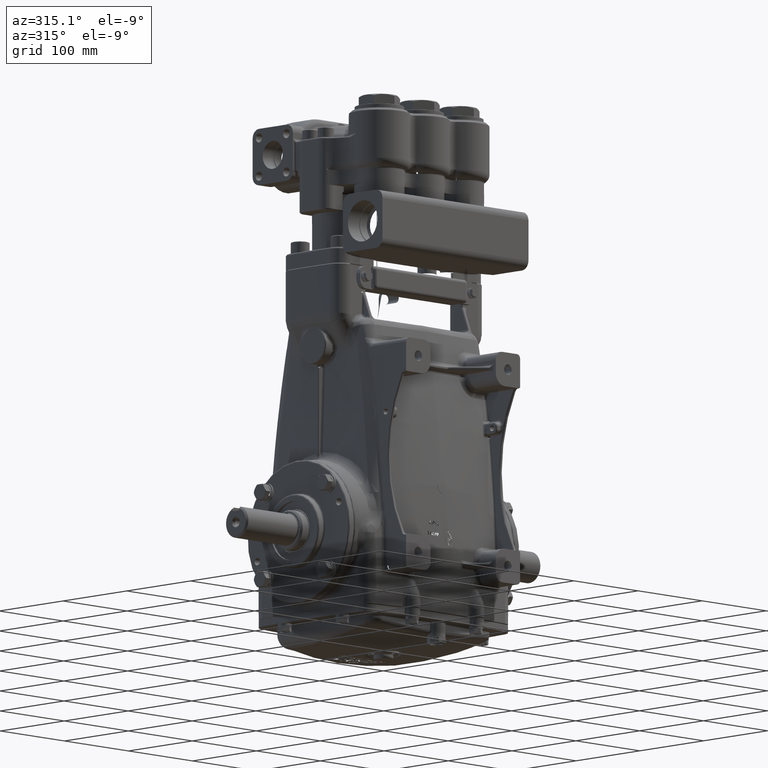
[diagram: clean part render]
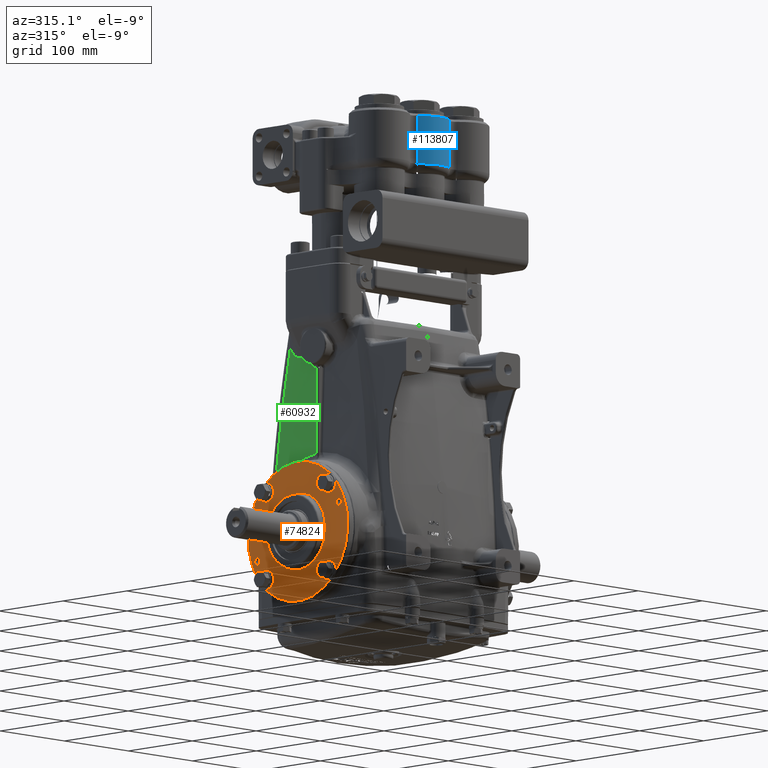
[diagram: same view with three faces highlighted in distinct colors, each labeled with its STEP entity id]
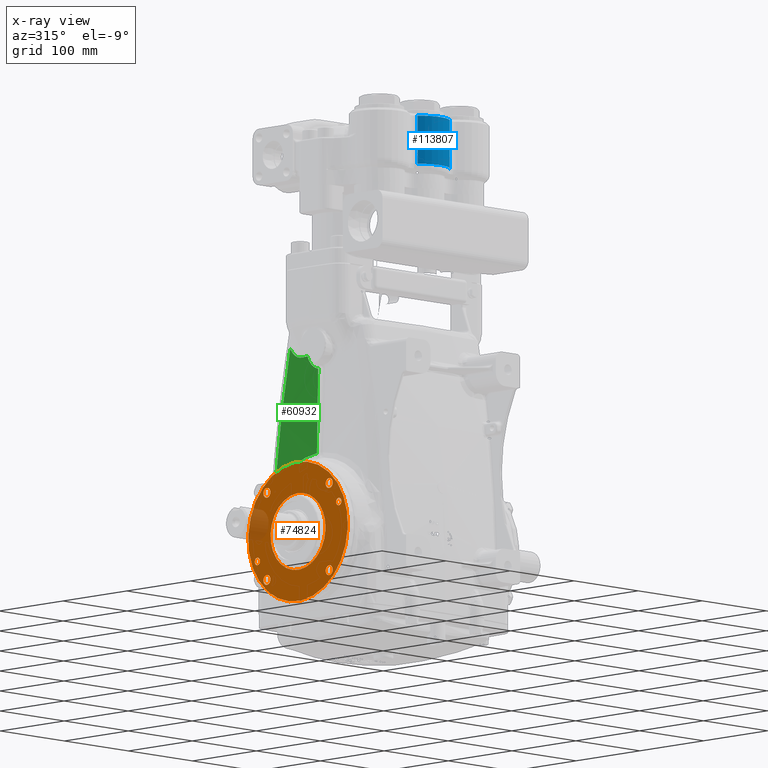
[diagram: x-ray of the same camera — body ghosted, the three highlighted faces saturated]
A machine part, auxiliary view with three faces highlighted in distinct colors.
The next image is the same camera in x-ray (body ghosted, the three faces saturated) — at least one of them is partly hidden behind the body in this view.
Their STEP definitions:

[orange] entity #74824 — the highlighted planar face has unit normal (-1, -0, 0).
#732 = ORIENTED_EDGE ( 'NONE', *, *, #22535, .T. ) ;
#951 = AXIS2_PLACEMENT_3D ( 'NONE', #77580, #118237, #26880 ) ;
#1003 = VERTEX_POINT ( 'NONE', #127578 ) ;
#3707 = CARTESIAN_POINT ( 'NONE',  ( -5.246062992125984259, -4.156730640558441200E-17, 2.958535915340194190E-16 ) ) ;
#4378 = FACE_OUTER_BOUND ( 'NONE', #118979, .T. ) ;
#6145 = CIRCLE ( 'NONE', #80750, 0.2165354330708663400 ) ;
#6868 = AXIS2_PLACEMENT_3D ( 'NONE', #33521, #74221, #114879 ) ;
#7209 = CARTESIAN_POINT ( 'NONE',  ( -5.246062992125986035, 1.767766952966371985, 1.767766952966366878 ) ) ;
#9135 = CARTESIAN_POINT ( 'NONE',  ( -5.246062992125986035, 2.073994299149522824, 2.073994299149517051 ) ) ;
#9946 = DIRECTION ( 'NONE',  ( -1.000000000000000000, -1.279769191153750031E-16, 9.737501798821864473E-31 ) ) ;
#10810 = CARTESIAN_POINT ( 'NONE',  ( -5.246062992125984259, -1.767766952966366878, 2.073994299149521936 ) ) ;
#11495 = ORIENTED_EDGE ( 'NONE', *, *, #78857, .F. ) ;
#12689 = VERTEX_POINT ( 'NONE', #26051 ) ;
#13182 = DIRECTION ( 'NONE',  ( -1.000000000000000000, -1.279769191153750031E-16, 9.737501798821864473E-31 ) ) ;
#13469 = CARTESIAN_POINT ( 'NONE',  ( -5.246062992125986035, 1.920880626057941409, -1.920880626057947405 ) ) ;
#13517 = CARTESIAN_POINT ( 'NONE',  ( -5.246062992125986035, 1.767766952966365768, -2.073994299149522824 ) ) ;
#13592 = VERTEX_POINT ( 'NONE', #89740 ) ;
#15008 = DIRECTION ( 'NONE',  ( -1.000000000000000000, -1.279769191153750031E-16, 9.737501798821864473E-31 ) ) ;
#15083 = DIRECTION ( 'NONE',  ( -1.000000000000000000, -1.279769191153749784E-16, 1.010728034814421376E-30 ) ) ;
#15602 = EDGE_CURVE ( 'NONE', #13592, #114374, #112849, .T. ) ;
#17557 = CARTESIAN_POINT ( 'NONE',  ( -5.246062992125986035, 1.920880626057947405, 1.920880626057941853 ) ) ;
#18728 = CARTESIAN_POINT ( 'NONE',  ( -5.246062992125984259, -1.920880626057942520, 1.920880626057946960 ) ) ;
#19965 = AXIS2_PLACEMENT_3D ( 'NONE', #18728, #59423, #100132 ) ;
#20178 = ORIENTED_EDGE ( 'NONE', *, *, #55443, .F. ) ;
#20803 = ORIENTED_EDGE ( 'NONE', *, *, #27095, .F. ) ;
#22086 = DIRECTION ( 'NONE',  ( -1.000000000000000000, -3.748357177353093439E-17, 9.049334734184479589E-17 ) ) ;
#22225 = CIRCLE ( 'NONE', #96736, 0.2165354330708661734 ) ;
#22501 = VERTEX_POINT ( 'NONE', #128935 ) ;
#22535 = EDGE_CURVE ( 'NONE', #91305, #99095, #26161, .T. ) ;
#23315 = CIRCLE ( 'NONE', #97879, 0.2165354330708663400 ) ;
#23331 = DIRECTION ( 'NONE',  ( -1.000000000000000000, -1.279769191153750031E-16, 9.737501798821864473E-31 ) ) ;
#24328 = VERTEX_POINT ( 'NONE', #13517 ) ;
#25081 = FACE_BOUND ( 'NONE', #112045, .T. ) ;
#25197 = CIRCLE ( 'NONE', #99793, 3.070866141732283339 ) ;
#25440 = EDGE_CURVE ( 'NONE', #99095, #91305, #25197, .T. ) ;
#26051 = CARTESIAN_POINT ( 'NONE',  ( -5.246062992125984259, -1.197070535079590270, -1.197070535079586717 ) ) ;
#26161 = CIRCLE ( 'NONE', #100751, 3.070866141732283339 ) ;
#26688 = CARTESIAN_POINT ( 'NONE',  ( -5.246062992125984259, -2.509751485955854733, 1.039573103668955278 ) ) ;
#26880 = DIRECTION ( 'NONE',  ( 0.0000000000000000000, -0.7071067811865485719, -0.7071067811865465735 ) ) ;
#26892 = VERTEX_POINT ( 'NONE', #129601 ) ;
#27095 = EDGE_CURVE ( 'NONE', #24328, #1003, #23315, .T. ) ;
#27548 = CARTESIAN_POINT ( 'NONE',  ( -5.246062992125984259, -4.156730640558441200E-17, 2.958535915340194190E-16 ) ) ;
#27600 = EDGE_LOOP ( 'NONE', ( #128414, #11495 ) ) ;
#33521 = CARTESIAN_POINT ( 'NONE',  ( -5.246062992125984259, -1.920880626057946960, -1.920880626057941409 ) ) ;
#33696 = ORIENTED_EDGE ( 'NONE', *, *, #54325, .F. ) ;
#35103 = FACE_BOUND ( 'NONE', #46585, .T. ) ;
#35650 = CARTESIAN_POINT ( 'NONE',  ( -5.246062992125984259, -2.509751485955854733, 1.039573103668955278 ) ) ;
#36088 = DIRECTION ( 'NONE',  ( 0.0000000000000000000, -0.7071067811865486830, -0.7071067811865461294 ) ) ;
#36319 = EDGE_CURVE ( 'NONE', #114182, #37950, #77471, .T. ) ;
#37391 = ORIENTED_EDGE ( 'NONE', *, *, #89387, .F. ) ;
#37856 = AXIS2_PLACEMENT_3D ( 'NONE', #17557, #58244, #98946 ) ;
#37950 = VERTEX_POINT ( 'NONE', #94280 ) ;
#38774 = CIRCLE ( 'NONE', #113337, 1.692913385826771977 ) ;
#39357 = DIRECTION ( 'NONE',  ( -1.000000000000000000, -3.748357177353093439E-17, 9.049334734184479589E-17 ) ) ;
#42129 = ORIENTED_EDGE ( 'NONE', *, *, #25440, .T. ) ;
#42144 = VERTEX_POINT ( 'NONE', #101385 ) ;
#43349 = ORIENTED_EDGE ( 'NONE', *, *, #94141, .F. ) ;
#44255 = ORIENTED_EDGE ( 'NONE', *, *, #51046, .F. ) ;
#44425 = DIRECTION ( 'NONE',  ( 1.000000000000000000, 1.279769191153750031E-16, -9.737501798821864473E-31 ) ) ;
#45109 = FACE_BOUND ( 'NONE', #90859, .T. ) ;
#46585 = EDGE_LOOP ( 'NONE', ( #20803, #44255 ) ) ;
#50650 = DIRECTION ( 'NONE',  ( 0.0000000000000000000, -0.7071067811865481278, -0.7071067811865469066 ) ) ;
#51046 = EDGE_CURVE ( 'NONE', #1003, #24328, #6145, .T. ) ;
#53867 = DIRECTION ( 'NONE',  ( 0.0000000000000000000, -0.7071067811865481278, -0.7071067811865469066 ) ) ;
#54154 = DIRECTION ( 'NONE',  ( -1.000000000000000000, -1.279769191153750031E-16, 9.737501798821864473E-31 ) ) ;
#54325 = EDGE_CURVE ( 'NONE', #54467, #26892, #119172, .T. ) ;
#54467 = VERTEX_POINT ( 'NONE', #99368 ) ;
#55302 = AXIS2_PLACEMENT_3D ( 'NONE', #114700, #23331, #64021 ) ;
#55443 = EDGE_CURVE ( 'NONE', #22501, #103413, #121488, .T. ) ;
#55702 = DIRECTION ( 'NONE',  ( 0.0000000000000000000, -0.7071067811865484609, -0.7071067811865465735 ) ) ;
#55774 = DIRECTION ( 'NONE',  ( 9.049334734184335376E-17, -0.7071067811865484609, -0.7071067811865465735 ) ) ;
#56364 = CIRCLE ( 'NONE', #130933, 0.1648818897637790437 ) ;
#56662 = ORIENTED_EDGE ( 'NONE', *, *, #95333, .F. ) ;
#57846 = CARTESIAN_POINT ( 'NONE',  ( -5.246062992125984259, 2.171430272935069627, 2.171430272935065187 ) ) ;
#58244 = DIRECTION ( 'NONE',  ( -1.000000000000000000, -1.279769191153750031E-16, 9.737501798821864473E-31 ) ) ;
#58454 = CIRCLE ( 'NONE', #951, 1.692913385826771977 ) ;
#59423 = DIRECTION ( 'NONE',  ( -1.000000000000000000, -1.279769191153750031E-16, 9.737501798821864473E-31 ) ) ;
#60838 = CARTESIAN_POINT ( 'NONE',  ( -5.246062992125984259, -2.171430272935070072, -2.171430272935063854 ) ) ;
#61718 = AXIS2_PLACEMENT_3D ( 'NONE', #26688, #67369, #108057 ) ;
#62112 = EDGE_CURVE ( 'NONE', #42144, #12689, #58454, .T. ) ;
#62499 = EDGE_LOOP ( 'NONE', ( #99022, #78035 ) ) ;
#62771 = DIRECTION ( 'NONE',  ( 0.0000000000000000000, -0.7071067811865463515, 0.7071067811865487940 ) ) ;
#63977 = AXIS2_PLACEMENT_3D ( 'NONE', #130743, #39357, #80048 ) ;
#64021 = DIRECTION ( 'NONE',  ( 0.0000000000000000000, -0.7071067811865486830, -0.7071067811865461294 ) ) ;
#64403 = CIRCLE ( 'NONE', #6868, 0.2165354330708661734 ) ;
#65763 = PLANE ( 'NONE',  #83401 ) ;
#67369 = DIRECTION ( 'NONE',  ( -1.000000000000000000, -3.748357177353093439E-17, 9.049334734184479589E-17 ) ) ;
#68245 = DIRECTION ( 'NONE',  ( -1.000000000000000000, -1.279769191153750031E-16, 9.737501798821864473E-31 ) ) ;
#68491 = VERTEX_POINT ( 'NONE', #9135 ) ;
#69396 = EDGE_CURVE ( 'NONE', #117453, #68491, #95362, .T. ) ;
#71879 = CARTESIAN_POINT ( 'NONE',  ( -5.246062992125984259, -1.767766952966371319, -1.767766952966366434 ) ) ;
#74221 = DIRECTION ( 'NONE',  ( -1.000000000000000000, -1.279769191153750031E-16, 9.737501798821864473E-31 ) ) ;
#74824 = ADVANCED_FACE ( 'NONE', ( #4378, #45109, #85799, #126470, #35103, #75804, #116462, #25081 ), #65763, .T. ) ;
#75709 = AXIS2_PLACEMENT_3D ( 'NONE', #101363, #9946, #50650 ) ;
#75730 = CARTESIAN_POINT ( 'NONE',  ( -5.246062992125984259, -4.156730640558441200E-17, 2.958535915340194190E-16 ) ) ;
#75804 = FACE_BOUND ( 'NONE', #27600, .T. ) ;
#76351 = DIRECTION ( 'NONE',  ( -1.000000000000000000, -3.748357177353093439E-17, 9.049334734184479589E-17 ) ) ;
#77471 = CIRCLE ( 'NONE', #19965, 0.2165354330708663400 ) ;
#77580 = CARTESIAN_POINT ( 'NONE',  ( -5.246062992125984259, -4.156730640558441200E-17, 2.958535915340194190E-16 ) ) ;
#78035 = ORIENTED_EDGE ( 'NONE', *, *, #93213, .F. ) ;
#78857 = EDGE_CURVE ( 'NONE', #114374, #13592, #64403, .T. ) ;
#80048 = DIRECTION ( 'NONE',  ( 0.0000000000000000000, -0.7071067811865463515, 0.7071067811865487940 ) ) ;
#80750 = AXIS2_PLACEMENT_3D ( 'NONE', #104587, #13182, #53867 ) ;
#81644 = CIRCLE ( 'NONE', #98660, 0.1648818897637792658 ) ;
#83401 = AXIS2_PLACEMENT_3D ( 'NONE', #106462, #15083, #55774 ) ;
#85117 = DIRECTION ( 'NONE',  ( 0.0000000000000000000, -0.7071067811865485719, -0.7071067811865465735 ) ) ;
#85799 = FACE_BOUND ( 'NONE', #86123, .T. ) ;
#86123 = EDGE_LOOP ( 'NONE', ( #33696, #37391 ) ) ;
#86773 = CARTESIAN_POINT ( 'NONE',  ( -5.246062992125986035, 1.920880626057947405, 1.920880626057941853 ) ) ;
#87592 = EDGE_CURVE ( 'NONE', #12689, #42144, #38774, .T. ) ;
#88631 = EDGE_LOOP ( 'NONE', ( #20178, #43349 ) ) ;
#89387 = EDGE_CURVE ( 'NONE', #26892, #54467, #81644, .T. ) ;
#89740 = CARTESIAN_POINT ( 'NONE',  ( -5.246062992125984259, -2.073994299149522380, -2.073994299149516607 ) ) ;
#90859 = EDGE_LOOP ( 'NONE', ( #95355, #117509 ) ) ;
#91305 = VERTEX_POINT ( 'NONE', #57846 ) ;
#93213 = EDGE_CURVE ( 'NONE', #68491, #117453, #22225, .T. ) ;
#94141 = EDGE_CURVE ( 'NONE', #103413, #22501, #56364, .T. ) ;
#94280 = CARTESIAN_POINT ( 'NONE',  ( -5.246062992125984259, -2.073994299149517939, 1.767766952966371541 ) ) ;
#94833 = DIRECTION ( 'NONE',  ( 0.0000000000000000000, -0.7071067811865481278, -0.7071067811865469066 ) ) ;
#95333 = EDGE_CURVE ( 'NONE', #37950, #114182, #116146, .T. ) ;
#95355 = ORIENTED_EDGE ( 'NONE', *, *, #87592, .T. ) ;
#95362 = CIRCLE ( 'NONE', #37856, 0.2165354330708661734 ) ;
#96736 = AXIS2_PLACEMENT_3D ( 'NONE', #86773, #127449, #36088 ) ;
#97879 = AXIS2_PLACEMENT_3D ( 'NONE', #13469, #54154, #94833 ) ;
#98660 = AXIS2_PLACEMENT_3D ( 'NONE', #35650, #76351, #117015 ) ;
#98946 = DIRECTION ( 'NONE',  ( 0.0000000000000000000, -0.7071067811865486830, -0.7071067811865461294 ) ) ;
#99022 = ORIENTED_EDGE ( 'NONE', *, *, #69396, .F. ) ;
#99095 = VERTEX_POINT ( 'NONE', #60838 ) ;
#99368 = CARTESIAN_POINT ( 'NONE',  ( -5.246062992125984259, -2.626340588302675805, 1.156162206015776350 ) ) ;
#99793 = AXIS2_PLACEMENT_3D ( 'NONE', #75730, #15008, #55702 ) ;
#100132 = DIRECTION ( 'NONE',  ( 0.0000000000000000000, -0.7071067811865481278, -0.7071067811865469066 ) ) ;
#100751 = AXIS2_PLACEMENT_3D ( 'NONE', #27548, #68245, #108921 ) ;
#101363 = CARTESIAN_POINT ( 'NONE',  ( -5.246062992125984259, -1.920880626057942520, 1.920880626057946960 ) ) ;
#101385 = CARTESIAN_POINT ( 'NONE',  ( -5.246062992125984259, 1.197070535079590048, 1.197070535079587383 ) ) ;
#103413 = VERTEX_POINT ( 'NONE', #106996 ) ;
#104587 = CARTESIAN_POINT ( 'NONE',  ( -5.246062992125986035, 1.920880626057941409, -1.920880626057947405 ) ) ;
#106462 = CARTESIAN_POINT ( 'NONE',  ( -5.246062992125984259, 1.141392835773562764, 1.141392835773559877 ) ) ;
#106996 = CARTESIAN_POINT ( 'NONE',  ( -5.246062992125986035, 2.626340588302674917, -1.156162206015776128 ) ) ;
#108057 = DIRECTION ( 'NONE',  ( 0.0000000000000000000, -0.7071067811865471286, 0.7071067811865477948 ) ) ;
#108921 = DIRECTION ( 'NONE',  ( 0.0000000000000000000, -0.7071067811865484609, -0.7071067811865465735 ) ) ;
#112045 = EDGE_LOOP ( 'NONE', ( #56662, #120625 ) ) ;
#112849 = CIRCLE ( 'NONE', #55302, 0.2165354330708661734 ) ;
#113337 = AXIS2_PLACEMENT_3D ( 'NONE', #3707, #44425, #85117 ) ;
#113459 = CARTESIAN_POINT ( 'NONE',  ( -5.246062992125986035, 2.509751485955853845, -1.039573103668955056 ) ) ;
#114182 = VERTEX_POINT ( 'NONE', #10810 ) ;
#114374 = VERTEX_POINT ( 'NONE', #71879 ) ;
#114700 = CARTESIAN_POINT ( 'NONE',  ( -5.246062992125984259, -1.920880626057946960, -1.920880626057941409 ) ) ;
#114879 = DIRECTION ( 'NONE',  ( 0.0000000000000000000, -0.7071067811865486830, -0.7071067811865461294 ) ) ;
#116146 = CIRCLE ( 'NONE', #75709, 0.2165354330708663400 ) ;
#116462 = FACE_BOUND ( 'NONE', #62499, .T. ) ;
#117015 = DIRECTION ( 'NONE',  ( 0.0000000000000000000, -0.7071067811865471286, 0.7071067811865477948 ) ) ;
#117453 = VERTEX_POINT ( 'NONE', #7209 ) ;
#117509 = ORIENTED_EDGE ( 'NONE', *, *, #62112, .T. ) ;
#118237 = DIRECTION ( 'NONE',  ( 1.000000000000000000, 1.279769191153750031E-16, -9.737501798821864473E-31 ) ) ;
#118979 = EDGE_LOOP ( 'NONE', ( #42129, #732 ) ) ;
#119172 = CIRCLE ( 'NONE', #61718, 0.1648818897637792658 ) ;
#120625 = ORIENTED_EDGE ( 'NONE', *, *, #36319, .F. ) ;
#121488 = CIRCLE ( 'NONE', #63977, 0.1648818897637790437 ) ;
#126470 = FACE_BOUND ( 'NONE', #88631, .T. ) ;
#127449 = DIRECTION ( 'NONE',  ( -1.000000000000000000, -1.279769191153750031E-16, 9.737501798821864473E-31 ) ) ;
#127578 = CARTESIAN_POINT ( 'NONE',  ( -5.246062992125986035, 2.073994299149517051, -1.767766952966372207 ) ) ;
#128414 = ORIENTED_EDGE ( 'NONE', *, *, #15602, .F. ) ;
#128935 = CARTESIAN_POINT ( 'NONE',  ( -5.246062992125986035, 2.393162383609033217, -0.9229840013221337625 ) ) ;
#129601 = CARTESIAN_POINT ( 'NONE',  ( -5.246062992125984259, -2.393162383609034105, 0.9229840013221340955 ) ) ;
#130743 = CARTESIAN_POINT ( 'NONE',  ( -5.246062992125986035, 2.509751485955853845, -1.039573103668955056 ) ) ;
#130933 = AXIS2_PLACEMENT_3D ( 'NONE', #113459, #22086, #62771 ) ;

[blue] entity #113807 — the highlighted cylindrical surface (edge-blend (fillet) strip) has radius 34 mm, axis along (-0, -0, 1).
#106 = EDGE_CURVE ( 'NONE', #85968, #28045, #126528, .T. ) ;
#1385 = DIRECTION ( 'NONE',  ( -0.0000000000000000000, -0.0000000000000000000, 1.000000000000000000 ) ) ;
#3161 = VECTOR ( 'NONE', #17154, 39.37007874015748143 ) ;
#8573 = EDGE_CURVE ( 'NONE', #91623, #29116, #69541, .T. ) ;
#13174 = AXIS2_PLACEMENT_3D ( 'NONE', #22904, #63578, #104281 ) ;
#17154 = DIRECTION ( 'NONE',  ( 0.0000000000000000000, 0.0000000000000000000, -1.000000000000000000 ) ) ;
#19270 = LINE ( 'NONE', #59967, #83981 ) ;
#22904 = CARTESIAN_POINT ( 'NONE',  ( -5.463695987328526437E-16, -2.204724409448818534, 19.90831493177342537 ) ) ;
#27483 = DIRECTION ( 'NONE',  ( -1.000000000000000000, 0.0000000000000000000, 0.0000000000000000000 ) ) ;
#28045 = VERTEX_POINT ( 'NONE', #44237 ) ;
#29085 = AXIS2_PLACEMENT_3D ( 'NONE', #62121, #1385, #42103 ) ;
#29116 = VERTEX_POINT ( 'NONE', #116767 ) ;
#38495 = EDGE_CURVE ( 'NONE', #28045, #91623, #67839, .T. ) ;
#42103 = DIRECTION ( 'NONE',  ( -1.000000000000000000, 0.0000000000000000000, 0.0000000000000000000 ) ) ;
#44237 = CARTESIAN_POINT ( 'NONE',  ( -0.9880014998125238312, -3.107861508662094874, 18.46456692913385922 ) ) ;
#48582 = EDGE_LOOP ( 'NONE', ( #88504, #89644, #73603, #53207 ) ) ;
#53207 = ORIENTED_EDGE ( 'NONE', *, *, #38495, .T. ) ;
#59967 = CARTESIAN_POINT ( 'NONE',  ( 0.9880014998125227210, -3.107861508662094874, 19.90831493177342537 ) ) ;
#62121 = CARTESIAN_POINT ( 'NONE',  ( -5.463695987328526437E-16, -2.204724409448818534, 16.34508470039022754 ) ) ;
#63578 = DIRECTION ( 'NONE',  ( -0.0000000000000000000, -0.0000000000000000000, 1.000000000000000000 ) ) ;
#67839 = LINE ( 'NONE', #108523, #3161 ) ;
#69541 = CIRCLE ( 'NONE', #29085, 1.338582677165354173 ) ;
#73603 = ORIENTED_EDGE ( 'NONE', *, *, #106, .T. ) ;
#73617 = FACE_OUTER_BOUND ( 'NONE', #48582, .T. ) ;
#78192 = CARTESIAN_POINT ( 'NONE',  ( -5.463695987328526437E-16, -2.204724409448818534, 18.46456692913385922 ) ) ;
#83981 = VECTOR ( 'NONE', #100669, 39.37007874015748143 ) ;
#85968 = VERTEX_POINT ( 'NONE', #112559 ) ;
#88504 = ORIENTED_EDGE ( 'NONE', *, *, #8573, .T. ) ;
#89644 = ORIENTED_EDGE ( 'NONE', *, *, #97289, .F. ) ;
#91623 = VERTEX_POINT ( 'NONE', #98404 ) ;
#97289 = EDGE_CURVE ( 'NONE', #85968, #29116, #19270, .T. ) ;
#98404 = CARTESIAN_POINT ( 'NONE',  ( -0.9880014998125238312, -3.107861508662094874, 16.34508470039022754 ) ) ;
#100669 = DIRECTION ( 'NONE',  ( -0.0000000000000000000, -0.0000000000000000000, -1.000000000000000000 ) ) ;
#104281 = DIRECTION ( 'NONE',  ( 1.000000000000000000, 0.0000000000000000000, 0.0000000000000000000 ) ) ;
#108523 = CARTESIAN_POINT ( 'NONE',  ( -0.9880014998125238312, -3.107861508662094874, 19.90831493177342537 ) ) ;
#112559 = CARTESIAN_POINT ( 'NONE',  ( 0.9880014998125227210, -3.107861508662094874, 18.46456692913385922 ) ) ;
#113807 = ADVANCED_FACE ( 'NONE', ( #73617 ), #114276, .T. ) ;
#114276 = CYLINDRICAL_SURFACE ( 'NONE', #13174, 1.338582677165354173 ) ;
#116141 = AXIS2_PLACEMENT_3D ( 'NONE', #78192, #118839, #27483 ) ;
#116767 = CARTESIAN_POINT ( 'NONE',  ( 0.9880014998125227210, -3.107861508662094874, 16.34508470039022754 ) ) ;
#118839 = DIRECTION ( 'NONE',  ( 0.0000000000000000000, 0.0000000000000000000, -1.000000000000000000 ) ) ;
#126528 = CIRCLE ( 'NONE', #116141, 1.338582677165354173 ) ;

[green] entity #60932 — the highlighted face is a freeform B-spline surface patch.
#470 = CARTESIAN_POINT ( 'NONE',  ( -3.748393755315712284, 0.9113142139156809041, 7.999475861940470445 ) ) ;
#1407 = CARTESIAN_POINT ( 'NONE',  ( -3.731566814817936173, 2.485603129191050975, 5.854716524150104462 ) ) ;
#2926 = CARTESIAN_POINT ( 'NONE',  ( -3.882552731350596531, 0.1952074763075978825, 4.173096759197417960 ) ) ;
#3293 = CARTESIAN_POINT ( 'NONE',  ( -3.780997444336503754, 0.2223176585675815109, 7.363752785689525737 ) ) ;
#4532 = ORIENTED_EDGE ( 'NONE', *, *, #35969, .T. ) ;
#5800 = CARTESIAN_POINT ( 'NONE',  ( -3.814269082362508279, 2.881727563546267135, 2.183157301090169256 ) ) ;
#6223 = CARTESIAN_POINT ( 'NONE',  ( -3.733922299676758261, 1.333328721851919196, 7.982173833637095761 ) ) ;
#6490 = CARTESIAN_POINT ( 'NONE',  ( -3.848943301525095340, 2.167944492491874708, 2.901138263487986535 ) ) ;
#6890 = CARTESIAN_POINT ( 'NONE',  ( -3.690335840694452862, 1.958854913898489203, 8.324391455311753063 ) ) ;
#7140 = CARTESIAN_POINT ( 'NONE',  ( -3.894786394521505546, 0.7103853647829597717, 3.556904880990348516 ) ) ;
#7864 = CARTESIAN_POINT ( 'NONE',  ( -3.869527187446668570, -3.093730040150461491, 0.0000000000000000000 ) ) ;
#7962 = CARTESIAN_POINT ( 'NONE',  ( -3.777935291468898615, 0.3774929401001666518, 7.414320324859057898 ) ) ;
#8545 = CARTESIAN_POINT ( 'NONE',  ( -3.492023689482935733, 3.130318220617600122, 11.77165354330708702 ) ) ;
#9121 = VERTEX_POINT ( 'NONE', #119166 ) ;
#10460 = CARTESIAN_POINT ( 'NONE',  ( -3.759073172954852105, 0.7955784368693339381, 7.762163299121855431 ) ) ;
#11295 = CARTESIAN_POINT ( 'NONE',  ( -3.741544740261005586, 1.137697093964823436, 7.989558192820006788 ) ) ;
#11430 = CARTESIAN_POINT ( 'NONE',  ( -3.690115058314008323, 2.151184730222527097, 7.938748593144839383 ) ) ;
#12963 = CARTESIAN_POINT ( 'NONE',  ( -3.897579778958996766, 0.1911960100756941172, 3.700911898809101430 ) ) ;
#13217 = CARTESIAN_POINT ( 'NONE',  ( -3.737246413980561233, 1.250827689957430655, 7.983334011769155580 ) ) ;
#16531 = CARTESIAN_POINT ( 'NONE',  ( -3.841825934484220717, 2.321752987976827942, 2.776907352330401757 ) ) ;
#16926 = CARTESIAN_POINT ( 'NONE',  ( -3.706169998231956253, 1.782203648955109410, 8.155738790503091806 ) ) ;
#17186 = CARTESIAN_POINT ( 'NONE',  ( -3.887101311113015711, 1.093470073726677372, 3.459338424640680643 ) ) ;
#17909 = CARTESIAN_POINT ( 'NONE',  ( -3.417568248015753873, -3.751042474745041044, 11.77165354330708702 ) ) ;
#18561 = CARTESIAN_POINT ( 'NONE',  ( -3.997422570790063912, 1.240083270499165558, 0.0000000000000000000 ) ) ;
#20491 = CARTESIAN_POINT ( 'NONE',  ( -3.762366642654819238, 0.7469393723837698396, 7.696034069038343972 ) ) ;
#23497 = VERTEX_POINT ( 'NONE', #3293 ) ;
#25082 = VERTEX_POINT ( 'NONE', #126551 ) ;
#26543 = CARTESIAN_POINT ( 'NONE',  ( -3.822073986058532657, 2.724013316633320247, 2.393584700320254388 ) ) ;
#26841 = B_SPLINE_CURVE_WITH_KNOTS ( 'NONE', 3,
 ( #62004, #102718, #11295, #52003 ),
 .UNSPECIFIED., .F., .F.,
 ( 4, 4 ),
 ( 0.01731557747049823279, 0.02595217692278705898 ),
 .UNSPECIFIED. ) ;
#26933 = CARTESIAN_POINT ( 'NONE',  ( -3.716392442699359755, 1.645632981019724106, 8.068440496362375924 ) ) ;
#27193 = CARTESIAN_POINT ( 'NONE',  ( -3.875529557525901225, 1.491464558333096546, 3.304179447892436894 ) ) ;
#28582 = CARTESIAN_POINT ( 'NONE',  ( -3.641732283464569786, 0.6274064368861428376, 11.77165354330708347 ) ) ;
#30518 = CARTESIAN_POINT ( 'NONE',  ( -3.769318368709678513, 0.6197733963408524893, 7.564470096886240391 ) ) ;
#31709 = EDGE_LOOP ( 'NONE', ( #83048, #130227, #105663, #4532, #131963, #93850 ) ) ;
#32120 = B_SPLINE_CURVE_WITH_KNOTS ( 'NONE', 3,
 ( #119380, #58679, #99381, #7962, #50514, #91176, #131886, #40509, #81193, #121873, #30518, #71207, #111861, #20491, #61168, #101885, #10460, #51172, #91854, #470 ),
 .UNSPECIFIED., .F., .F.,
 ( 4, 2, 2, 2, 2, 2, 2, 2, 2, 4 ),
 ( 0.002329065528260601450, 0.005465965124093025498, 0.008602864719925450848, 0.01017131451784164531, 0.01173976431575783977, 0.01487666391159022869, 0.01801356350742261761, 0.01958201330533878085, 0.02115046310325494755, 0.02742426229491953110 ),
 .UNSPECIFIED. ) ;
#32132 = CARTESIAN_POINT ( 'NONE',  ( -3.801213099687899444, 2.841866375676329604, 2.709332421064478247 ) ) ;
#33636 = CARTESIAN_POINT ( 'NONE',  ( -3.808172675950928898, 0.2150632248943825653, 6.510060788404041787 ) ) ;
#35969 = EDGE_CURVE ( 'NONE', #25082, #47705, #26841, .T. ) ;
#36946 = B_SPLINE_SURFACE_WITH_KNOTS ( 'NONE', 3, 1, ( 
 ( #17909, #58587 ),
 ( #99288, #7864 ),
 ( #48584, #89273 ),
 ( #129962, #38590 ),
 ( #79284, #119940 ),
 ( #28582, #69273 ),
 ( #109936, #18561 ),
 ( #59248, #99955 ),
 ( #8545, #49261 ),
 ( #89939, #130635 ) ),
 .UNSPECIFIED., .F., .F., .F.,
 ( 4, 2, 2, 2, 4 ),
 ( 2, 2 ),
 ( 0.0000000000000000000, 0.2500000000000000000, 0.5000000000000000000, 0.7500000000000000000, 1.000000000000000000 ),
 ( 0.0000000000000000000, 1.000000000000000000 ),
 .UNSPECIFIED. ) ;
#36948 = CARTESIAN_POINT ( 'NONE',  ( -3.723598253900532118, 1.532344962810493039, 8.021244488250040661 ) ) ;
#37206 = CARTESIAN_POINT ( 'NONE',  ( -3.869321220935609151, 1.668978060991885615, 3.216228557817926159 ) ) ;
#38590 = CARTESIAN_POINT ( 'NONE',  ( -3.997422570790063467, -1.240083270499171553, -0.0000000000000000000 ) ) ;
#38914 = B_SPLINE_CURVE_WITH_KNOTS ( 'NONE', 3,
 ( #102853, #11430, #52141, #92811, #1407, #42130, #82817, #123486, #32132, #72824 ),
 .UNSPECIFIED., .F., .F.,
 ( 4, 2, 2, 2, 4 ),
 ( 0.08476750981346586888, 0.1249840975113978014, 0.1652006852093297340, 0.2054172729072616943, 0.2456338606051936269 ),
 .UNSPECIFIED. ) ;
#40509 = CARTESIAN_POINT ( 'NONE',  ( -3.773409891457478516, 0.5209831632119074074, 7.491734781914430208 ) ) ;
#42130 = CARTESIAN_POINT ( 'NONE',  ( -3.753557971363301160, 2.623800068678024289, 4.808583868586544519 ) ) ;
#43649 = CARTESIAN_POINT ( 'NONE',  ( -3.872534344536055162, 0.1978818825397740122, 4.487886654012531729 ) ) ;
#46953 = CARTESIAN_POINT ( 'NONE',  ( -3.730105332427684051, 1.414329535216990230, 7.991008632347821106 ) ) ;
#47215 = CARTESIAN_POINT ( 'NONE',  ( -3.852468003778858119, 2.088306137993098055, 2.959058451404164014 ) ) ;
#47608 = CARTESIAN_POINT ( 'NONE',  ( -3.685140907735744431, 2.008548274893626306, 8.388609275366743390 ) ) ;
#47705 = VERTEX_POINT ( 'NONE', #13217 ) ;
#47864 = CARTESIAN_POINT ( 'NONE',  ( -3.897772565266789169, 0.5169205377407134483, 3.594156888607397349 ) ) ;
#48584 = CARTESIAN_POINT ( 'NONE',  ( -3.548114066309883796, -2.506268747040617306, 11.77165354330708880 ) ) ;
#49233 = B_SPLINE_CURVE_WITH_KNOTS ( 'NONE', 3,
 ( #56945, #97656, #6223, #46953, #87650, #128321, #36948, #77640, #118291, #26933, #67611, #108297, #16926, #57602, #98317, #6890, #47608, #88295 ),
 .UNSPECIFIED., .F., .F.,
 ( 4, 2, 2, 2, 2, 2, 2, 2, 4 ),
 ( 6.938893903907228378E-18, 0.003139315955351391907, 0.006278631910702776875, 0.007848289888378469359, 0.009417947866054161843, 0.01255726382140552773, 0.01569657977675689015, 0.01883589573210825777, 0.02511452764281098607 ),
 .UNSPECIFIED. ) ;
#49261 = CARTESIAN_POINT ( 'NONE',  ( -3.869527187446669902, 3.093730040150455718, 0.0000000000000000000 ) ) ;
#50052 = B_SPLINE_CURVE_WITH_KNOTS ( 'NONE', 3,
 ( #73695, #12963, #53654, #94338, #2926, #43649, #84339, #125002, #33636, #74333 ),
 .UNSPECIFIED., .F., .F.,
 ( 4, 3, 3, 4 ),
 ( 0.0000000000000000000, 0.006000000000000226506, 0.03000000000002943021, 0.09508662804967588089 ),
 .UNSPECIFIED. ) ;
#50514 = CARTESIAN_POINT ( 'NONE',  ( -3.776933466327654365, 0.4144704050693630015, 7.431135478091151825 ) ) ;
#51172 = CARTESIAN_POINT ( 'NONE',  ( -3.754939931341117365, 0.8505913285577999527, 7.847891843103949938 ) ) ;
#52003 = CARTESIAN_POINT ( 'NONE',  ( -3.737246413980561233, 1.250827689957430655, 7.983334011769155580 ) ) ;
#52141 = CARTESIAN_POINT ( 'NONE',  ( -3.700236916683070199, 2.241993115511200063, 7.419026472001160499 ) ) ;
#53654 = CARTESIAN_POINT ( 'NONE',  ( -3.895075288778032885, 0.1918645830104698524, 3.779609376145993238 ) ) ;
#56945 = CARTESIAN_POINT ( 'NONE',  ( -3.737246413980561233, 1.250827689957430655, 7.983334011769155580 ) ) ;
#57206 = CARTESIAN_POINT ( 'NONE',  ( -3.843013880706268814, 2.296435636893946253, 2.798099595192025113 ) ) ;
#57602 = CARTESIAN_POINT ( 'NONE',  ( -3.700873202376119497, 1.845088177050854705, 8.208289902020339923 ) ) ;
#57866 = CARTESIAN_POINT ( 'NONE',  ( -3.891257435909154516, 0.9031446705848803491, 3.512454220463555821 ) ) ;
#58587 = CARTESIAN_POINT ( 'NONE',  ( -3.796797284644001458, -3.707321620861105949, 0.0000000000000000000 ) ) ;
#58679 = CARTESIAN_POINT ( 'NONE',  ( -3.780409702901188496, 0.2623913758669057517, 7.373342612215266101 ) ) ;
#59248 = CARTESIAN_POINT ( 'NONE',  ( -3.548114066309885128, 2.506268747040624856, 11.77165354330709057 ) ) ;
#60932 = ADVANCED_FACE ( 'NONE', ( #109277 ), #36946, .T. ) ;
#61168 = CARTESIAN_POINT ( 'NONE',  ( -3.761546061077517322, 0.7596846554282417063, 7.712249901229413673 ) ) ;
#62004 = CARTESIAN_POINT ( 'NONE',  ( -3.748393755315712284, 0.9113142139156809041, 7.999475861940470445 ) ) ;
#63204 = VERTEX_POINT ( 'NONE', #72227 ) ;
#67226 = CARTESIAN_POINT ( 'NONE',  ( -3.831216890029640609, 2.545689858217763391, 2.584407004270220742 ) ) ;
#67401 = B_SPLINE_CURVE_WITH_KNOTS ( 'NONE', 3,
 ( #87241, #26543, #67226, #107909, #16531, #57206, #97917, #6490, #47215, #87907, #128575, #37206, #77901, #118554, #27193, #67875, #108560, #17186, #57866, #98578, #7140, #47864, #88550, #129240 ),
 .UNSPECIFIED., .F., .F.,
 ( 4, 2, 2, 1, 1, 2, 2, 2, 1, 2, 2, 2, 1, 4 ),
 ( 0.0000000000000000000, 0.1179203800849831091, 0.1252904038402945508, 0.1326604275956060064, 0.1474004751062289453, 0.1768805701274747399, 0.2358407601699662182, 0.2505808076805890461, 0.2653208551912119018, 0.2948009502124574466, 0.3537611402549485917, 0.3832412352761942476, 0.4127213302974399034, 0.4716815203399310485 ),
 .UNSPECIFIED. ) ;
#67611 = CARTESIAN_POINT ( 'NONE',  ( -3.713889267219995016, 1.681184107335711886, 8.087944042120563282 ) ) ;
#67875 = CARTESIAN_POINT ( 'NONE',  ( -3.878401990669102517, 1.400894637858113523, 3.343527160420475042 ) ) ;
#69273 = CARTESIAN_POINT ( 'NONE',  ( -4.015748031496064741, 0.6200421058895375648, -0.0000000000000000000 ) ) ;
#71207 = CARTESIAN_POINT ( 'NONE',  ( -3.766336763381120889, 0.6794155713207951086, 7.619580191137494296 ) ) ;
#72227 = CARTESIAN_POINT ( 'NONE',  ( -3.680044730410442888, 2.053194663346450621, 8.457199941519622399 ) ) ;
#72824 = CARTESIAN_POINT ( 'NONE',  ( -3.814269082362508279, 2.881727563546267135, 2.183157301090169256 ) ) ;
#73695 = CARTESIAN_POINT ( 'NONE',  ( -3.900084263422959996, 0.1905274403188320365, 3.622214371685400724 ) ) ;
#74333 = CARTESIAN_POINT ( 'NONE',  ( -3.780997444336503754, 0.2223176585675815109, 7.363752785689525737 ) ) ;
#76312 = VERTEX_POINT ( 'NONE', #5800 ) ;
#77497 = EDGE_CURVE ( 'NONE', #23497, #25082, #32120, .T. ) ;
#77640 = CARTESIAN_POINT ( 'NONE',  ( -3.721251741590871465, 1.570867440130811143, 8.035300269224494585 ) ) ;
#77901 = CARTESIAN_POINT ( 'NONE',  ( -3.870375974433259536, 1.639798515878790219, 3.231352365396302773 ) ) ;
#79284 = CARTESIAN_POINT ( 'NONE',  ( -3.641732283464570230, -0.6274064368861355101, 11.77165354330708347 ) ) ;
#81193 = CARTESIAN_POINT ( 'NONE',  ( -3.772757130843105156, 0.5381749237251004514, 7.503164468073761917 ) ) ;
#82817 = CARTESIAN_POINT ( 'NONE',  ( -3.764946817707797155, 2.685616327955809624, 4.284649282652233104 ) ) ;
#83048 = ORIENTED_EDGE ( 'NONE', *, *, #128024, .T. ) ;
#84339 = CARTESIAN_POINT ( 'NONE',  ( -3.862515616823473330, 0.2005563803984664328, 4.802676537199310758 ) ) ;
#87241 = CARTESIAN_POINT ( 'NONE',  ( -3.814269082362508279, 2.881727563546267135, 2.183157301090169256 ) ) ;
#87650 = CARTESIAN_POINT ( 'NONE',  ( -3.728043860614591587, 1.454157673969535658, 7.998700912718393674 ) ) ;
#87907 = CARTESIAN_POINT ( 'NONE',  ( -3.859431638617474292, 1.926079919072109403, 3.070373594701576447 ) ) ;
#88295 = CARTESIAN_POINT ( 'NONE',  ( -3.680044730410442888, 2.053194663346450621, 8.457199941519622399 ) ) ;
#88550 = CARTESIAN_POINT ( 'NONE',  ( -3.899510998106787252, 0.3215730596550602782, 3.615289826487521285 ) ) ;
#89273 = CARTESIAN_POINT ( 'NONE',  ( -3.924311983438357299, -2.476928161784076377, -0.0000000000000000000 ) ) ;
#89939 = CARTESIAN_POINT ( 'NONE',  ( -3.417568248015753873, 3.751042474745048594, 11.77165354330708702 ) ) ;
#91176 = CARTESIAN_POINT ( 'NONE',  ( -3.775247254763608229, 0.4683819113088739106, 7.459929943147075804 ) ) ;
#91854 = CARTESIAN_POINT ( 'NONE',  ( -3.751624373794630429, 0.8855905037069110586, 7.921232832945513280 ) ) ;
#92811 = CARTESIAN_POINT ( 'NONE',  ( -3.720962081858113724, 2.409200364965605079, 6.377039946395764325 ) ) ;
#93850 = ORIENTED_EDGE ( 'NONE', *, *, #102064, .T. ) ;
#94338 = CARTESIAN_POINT ( 'NONE',  ( -3.892570777292546857, 0.1925331616698951476, 3.858306852756240968 ) ) ;
#97656 = CARTESIAN_POINT ( 'NONE',  ( -3.735683296500350359, 1.291968450477900987, 7.981070543254713101 ) ) ;
#97917 = CARTESIAN_POINT ( 'NONE',  ( -3.844795255622556862, 2.258275324831952702, 2.829605132451023408 ) ) ;
#98317 = CARTESIAN_POINT ( 'NONE',  ( -3.698222915136726296, 1.874780925874372839, 8.236317404744104564 ) ) ;
#98578 = CARTESIAN_POINT ( 'NONE',  ( -3.892526119267199380, 0.8389381673901314951, 3.528488193748557489 ) ) ;
#99288 = CARTESIAN_POINT ( 'NONE',  ( -3.492023689482936177, -3.130318220617592129, 11.77165354330708702 ) ) ;
#99381 = CARTESIAN_POINT ( 'NONE',  ( -3.779673058254272355, 0.3014745340102622517, 7.385429307348075234 ) ) ;
#99955 = CARTESIAN_POINT ( 'NONE',  ( -3.924311983438356854, 2.476928161784071047, -0.0000000000000000000 ) ) ;
#101885 = CARTESIAN_POINT ( 'NONE',  ( -3.759899130135716749, 0.7840040398620636841, 7.745319522350061270 ) ) ;
#102064 = EDGE_CURVE ( 'NONE', #63204, #76312, #38914, .T. ) ;
#102718 = CARTESIAN_POINT ( 'NONE',  ( -3.745260694221265840, 1.024525947110500379, 7.994939052954174841 ) ) ;
#102853 = CARTESIAN_POINT ( 'NONE',  ( -3.680044730410442888, 2.053194663346450621, 8.457199941519622399 ) ) ;
#105663 = ORIENTED_EDGE ( 'NONE', *, *, #77497, .T. ) ;
#107909 = CARTESIAN_POINT ( 'NONE',  ( -3.841237803773995374, 2.334222360984698152, 2.766325288481716882 ) ) ;
#108297 = CARTESIAN_POINT ( 'NONE',  ( -3.708778091017510992, 1.749470314369184987, 8.131591752081840596 ) ) ;
#108560 = CARTESIAN_POINT ( 'NONE',  ( -3.883854971647476173, 1.217913260039406032, 3.417106659629911114 ) ) ;
#109277 = FACE_OUTER_BOUND ( 'NONE', #31709, .T. ) ;
#109936 = CARTESIAN_POINT ( 'NONE',  ( -3.622968540720541863, 1.254811875291648615, 11.77165354330708347 ) ) ;
#111861 = CARTESIAN_POINT ( 'NONE',  ( -3.764780063005185529, 0.7074933652507191528, 7.649011501012680903 ) ) ;
#116959 = EDGE_CURVE ( 'NONE', #47705, #63204, #49233, .T. ) ;
#118291 = CARTESIAN_POINT ( 'NONE',  ( -3.720045848257256704, 1.589920921144402755, 8.043114561013412711 ) ) ;
#118554 = CARTESIAN_POINT ( 'NONE',  ( -3.872461888922966722, 1.580649769546676797, 3.260994790979421687 ) ) ;
#119166 = CARTESIAN_POINT ( 'NONE',  ( -3.900084263422959996, 0.1905274403188320365, 3.622214371685400724 ) ) ;
#119380 = CARTESIAN_POINT ( 'NONE',  ( -3.780997444336503754, 0.2223176585675815109, 7.363752785689525737 ) ) ;
#119940 = CARTESIAN_POINT ( 'NONE',  ( -4.015748031496065629, -0.6200421058895443371, 0.0000000000000000000 ) ) ;
#121873 = CARTESIAN_POINT ( 'NONE',  ( -3.770743357319649380, 0.5882091019473552063, 7.538791223564354382 ) ) ;
#123486 = CARTESIAN_POINT ( 'NONE',  ( -3.788773721439311348, 2.794649350203434857, 3.235045082078513712 ) ) ;
#125002 = CARTESIAN_POINT ( 'NONE',  ( -3.835345399983635772, 0.2078094657046073157, 5.656368705560259613 ) ) ;
#126551 = CARTESIAN_POINT ( 'NONE',  ( -3.748393755315712284, 0.9113142139156809041, 7.999475861940470445 ) ) ;
#128024 = EDGE_CURVE ( 'NONE', #76312, #9121, #67401, .T. ) ;
#128321 = CARTESIAN_POINT ( 'NONE',  ( -3.724736574159976055, 1.512920774022993520, 8.015010944263826431 ) ) ;
#128575 = CARTESIAN_POINT ( 'NONE',  ( -3.863960131350802740, 1.813996131429960634, 3.138550046853250564 ) ) ;
#129240 = CARTESIAN_POINT ( 'NONE',  ( -3.900084263422959996, 0.1905274403188320365, 3.622214371685400724 ) ) ;
#129962 = CARTESIAN_POINT ( 'NONE',  ( -3.622968540720540975, -1.254811875291640400, 11.77165354330708702 ) ) ;
#130227 = ORIENTED_EDGE ( 'NONE', *, *, #131730, .T. ) ;
#130635 = CARTESIAN_POINT ( 'NONE',  ( -3.796797284644001458, 3.707321620861099287, 0.0000000000000000000 ) ) ;
#131730 = EDGE_CURVE ( 'NONE', #9121, #23497, #50052, .T. ) ;
#131886 = CARTESIAN_POINT ( 'NONE',  ( -3.774654548920006292, 0.4860925308570703818, 7.470125152249214473 ) ) ;
#131963 = ORIENTED_EDGE ( 'NONE', *, *, #116959, .T. ) ;